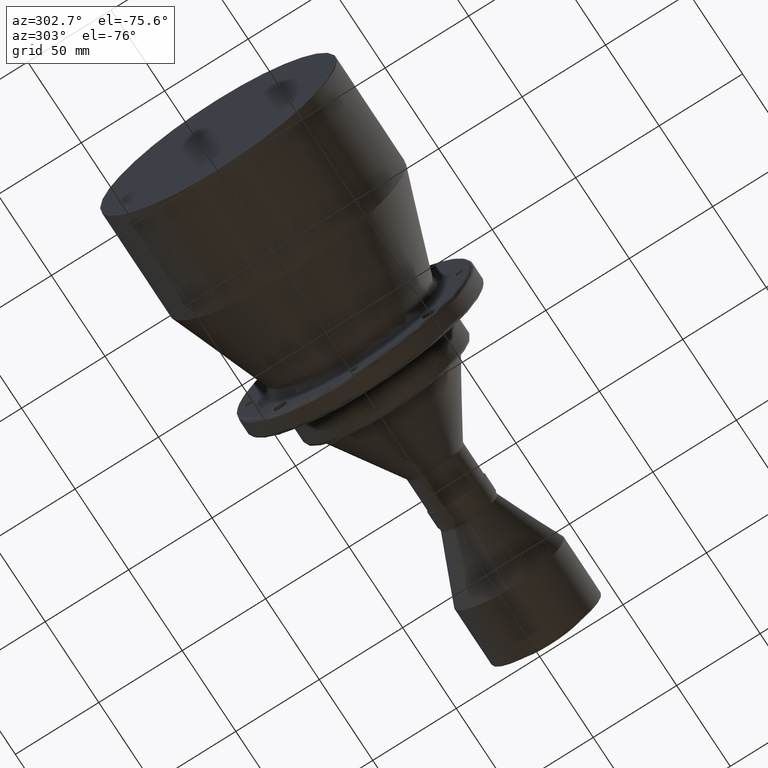
[diagram: clean part render]
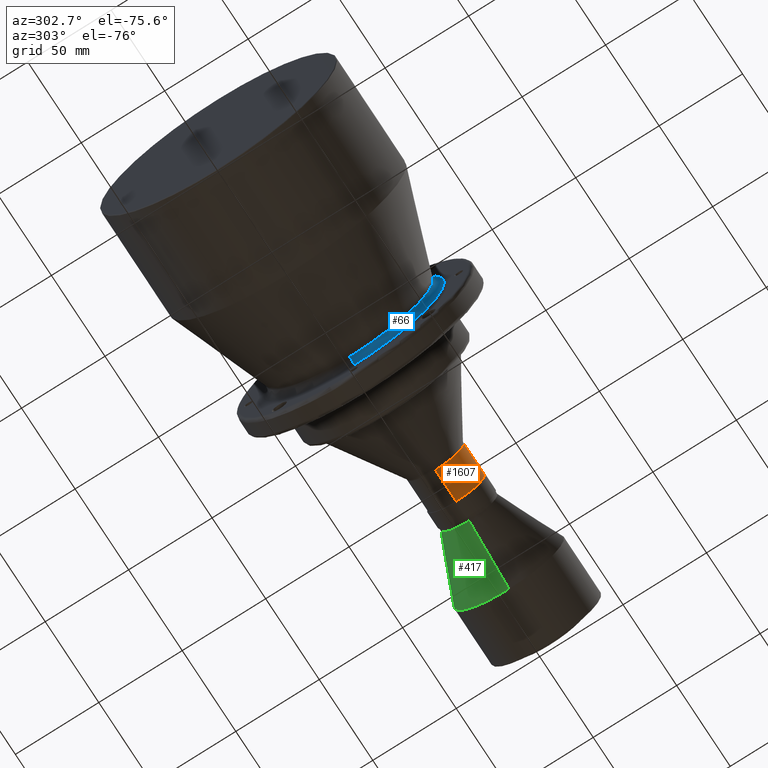
[diagram: same view with three faces highlighted in distinct colors, each labeled with its STEP entity id]
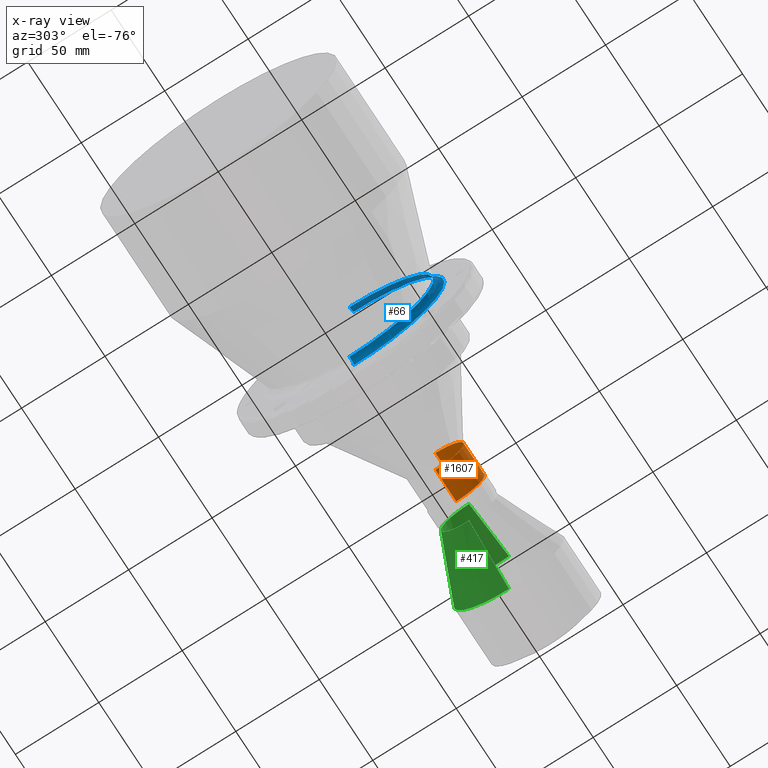
[diagram: x-ray of the same camera — body ghosted, the three highlighted faces saturated]
A machine part, auxiliary view with three faces highlighted in distinct colors.
The next image is the same camera in x-ray (body ghosted, the three faces saturated) — at least one of them is partly hidden behind the body in this view.
Their STEP definitions:

[orange] entity #1607 — the highlighted cylindrical surface (edge-blend (fillet) strip) has radius 17 mm, axis along (-1, -0, -0).
#24 = DIRECTION ( 'NONE',  ( 0.0000000000000000000, 0.0000000000000000000, 1.000000000000000000 ) ) ;
#38 = VERTEX_POINT ( 'NONE', #1800 ) ;
#47 = AXIS2_PLACEMENT_3D ( 'NONE', #785, #367, #1791 ) ;
#53 = CARTESIAN_POINT ( 'NONE',  ( 222.0999999999999900, 2.081899558550500300E-015, -17.00000000000000000 ) ) ;
#62 = DIRECTION ( 'NONE',  ( 0.0000000000000000000, 0.0000000000000000000, 1.000000000000000000 ) ) ;
#115 = FACE_OUTER_BOUND ( 'NONE', #1278, .T. ) ;
#160 = ORIENTED_EDGE ( 'NONE', *, *, #1414, .F. ) ;
#163 = EDGE_CURVE ( 'NONE', #203, #636, #381, .T. ) ;
#203 = VERTEX_POINT ( 'NONE', #1405 ) ;
#227 = CARTESIAN_POINT ( 'NONE',  ( 202.6691211577453100, 0.0000000000000000000, 17.00000000000000000 ) ) ;
#274 = CIRCLE ( 'NONE', #47, 17.00000000000000000 ) ;
#343 = CYLINDRICAL_SURFACE ( 'NONE', #1502, 17.00000000000000000 ) ;
#367 = DIRECTION ( 'NONE',  ( -1.000000000000000000, -0.0000000000000000000, -0.0000000000000000000 ) ) ;
#381 = LINE ( 'NONE', #1132, #1847 ) ;
#427 = CIRCLE ( 'NONE', #760, 17.00000000000000000 ) ;
#562 = VERTEX_POINT ( 'NONE', #53 ) ;
#636 = VERTEX_POINT ( 'NONE', #227 ) ;
#760 = AXIS2_PLACEMENT_3D ( 'NONE', #870, #1857, #24 ) ;
#785 = CARTESIAN_POINT ( 'NONE',  ( 222.0999999999999900, 0.0000000000000000000, 0.0000000000000000000 ) ) ;
#813 = LINE ( 'NONE', #944, #1016 ) ;
#814 = DIRECTION ( 'NONE',  ( -1.000000000000000000, -0.0000000000000000000, -0.0000000000000000000 ) ) ;
#870 = CARTESIAN_POINT ( 'NONE',  ( 202.6691211577453100, 0.0000000000000000000, 0.0000000000000000000 ) ) ;
#944 = CARTESIAN_POINT ( 'NONE',  ( -15.38440440350833200, 2.081899558550500300E-015, -17.00000000000000000 ) ) ;
#1005 = ORIENTED_EDGE ( 'NONE', *, *, #1770, .F. ) ;
#1016 = VECTOR ( 'NONE', #814, 1000.000000000000000 ) ;
#1076 = CARTESIAN_POINT ( 'NONE',  ( -15.38440440350833200, 0.0000000000000000000, 0.0000000000000000000 ) ) ;
#1120 = DIRECTION ( 'NONE',  ( -1.000000000000000000, -0.0000000000000000000, -0.0000000000000000000 ) ) ;
#1132 = CARTESIAN_POINT ( 'NONE',  ( -15.38440440350833200, 0.0000000000000000000, 17.00000000000000000 ) ) ;
#1232 = ORIENTED_EDGE ( 'NONE', *, *, #163, .T. ) ;
#1233 = DIRECTION ( 'NONE',  ( -1.000000000000000000, -0.0000000000000000000, -0.0000000000000000000 ) ) ;
#1240 = ORIENTED_EDGE ( 'NONE', *, *, #1629, .T. ) ;
#1278 = EDGE_LOOP ( 'NONE', ( #160, #1240, #1232, #1005 ) ) ;
#1405 = CARTESIAN_POINT ( 'NONE',  ( 222.0999999999999900, 0.0000000000000000000, 17.00000000000000000 ) ) ;
#1414 = EDGE_CURVE ( 'NONE', #562, #38, #813, .T. ) ;
#1502 = AXIS2_PLACEMENT_3D ( 'NONE', #1076, #1233, #62 ) ;
#1607 = ADVANCED_FACE ( 'NONE', ( #115 ), #343, .T. ) ;
#1629 = EDGE_CURVE ( 'NONE', #562, #203, #274, .T. ) ;
#1770 = EDGE_CURVE ( 'NONE', #38, #636, #427, .T. ) ;
#1791 = DIRECTION ( 'NONE',  ( 0.0000000000000000000, 0.0000000000000000000, 1.000000000000000000 ) ) ;
#1800 = CARTESIAN_POINT ( 'NONE',  ( 202.6691211577453100, 2.081899558550500300E-015, -17.00000000000000000 ) ) ;
#1847 = VECTOR ( 'NONE', #1120, 1000.000000000000000 ) ;
#1857 = DIRECTION ( 'NONE',  ( -1.000000000000000000, -0.0000000000000000000, -0.0000000000000000000 ) ) ;

[blue] entity #66 — the highlighted toroidal blend (fillet) surface has major radius 54.3284 mm and minor (blend) radius 4 mm.
#66 = ADVANCED_FACE ( 'NONE', ( #1253 ), #1272, .F. ) ;
#68 = EDGE_CURVE ( 'NONE', #1127, #1744, #170, .T. ) ;
#154 = AXIS2_PLACEMENT_3D ( 'NONE', #395, #965, #531 ) ;
#170 = CIRCLE ( 'NONE', #568, 4.000000000000003600 ) ;
#287 = ORIENTED_EDGE ( 'NONE', *, *, #1406, .T. ) ;
#312 = EDGE_LOOP ( 'NONE', ( #977, #1257, #287, #1328 ) ) ;
#382 = CARTESIAN_POINT ( 'NONE',  ( 122.5000000000000000, 0.0000000000000000000, 0.0000000000000000000 ) ) ;
#384 = VERTEX_POINT ( 'NONE', #1589 ) ;
#395 = CARTESIAN_POINT ( 'NONE',  ( 126.5000000000000000, 0.0000000000000000000, 0.0000000000000000000 ) ) ;
#414 = CIRCLE ( 'NONE', #1545, 50.32842261959696400 ) ;
#431 = CARTESIAN_POINT ( 'NONE',  ( 126.5000000000000000, 6.653312886381410900E-015, -54.32842261959698500 ) ) ;
#480 = CIRCLE ( 'NONE', #154, 54.32842261959700600 ) ;
#527 = VERTEX_POINT ( 'NONE', #1205 ) ;
#531 = DIRECTION ( 'NONE',  ( 0.0000000000000000000, 0.0000000000000000000, 1.000000000000000000 ) ) ;
#540 = AXIS2_PLACEMENT_3D ( 'NONE', #1790, #1268, #832 ) ;
#565 = DIRECTION ( 'NONE',  ( -1.000000000000000000, -0.0000000000000000000, -0.0000000000000000000 ) ) ;
#568 = AXIS2_PLACEMENT_3D ( 'NONE', #1080, #1517, #926 ) ;
#577 = CARTESIAN_POINT ( 'NONE',  ( 122.5000000000000000, 6.163454166722467200E-015, -50.32842261959696400 ) ) ;
#649 = AXIS2_PLACEMENT_3D ( 'NONE', #382, #1806, #668 ) ;
#668 = DIRECTION ( 'NONE',  ( 0.0000000000000000000, 0.0000000000000000000, 1.000000000000000000 ) ) ;
#701 = EDGE_CURVE ( 'NONE', #527, #384, #1206, .T. ) ;
#832 = DIRECTION ( 'NONE',  ( 0.0000000000000000000, 0.0000000000000000000, -1.000000000000000000 ) ) ;
#851 = EDGE_CURVE ( 'NONE', #1127, #527, #414, .T. ) ;
#926 = DIRECTION ( 'NONE',  ( 0.0000000000000000000, -1.224646799147353500E-016, 1.000000000000000000 ) ) ;
#965 = DIRECTION ( 'NONE',  ( -1.000000000000000000, -0.0000000000000000000, -0.0000000000000000000 ) ) ;
#977 = ORIENTED_EDGE ( 'NONE', *, *, #851, .F. ) ;
#1003 = CARTESIAN_POINT ( 'NONE',  ( 122.5000000000000000, 0.0000000000000000000, 0.0000000000000000000 ) ) ;
#1080 = CARTESIAN_POINT ( 'NONE',  ( 122.5000000000000000, 6.653312886381408600E-015, -54.32842261959696400 ) ) ;
#1127 = VERTEX_POINT ( 'NONE', #577 ) ;
#1205 = CARTESIAN_POINT ( 'NONE',  ( 122.5000000000000000, 0.0000000000000000000, 50.32842261959696400 ) ) ;
#1206 = CIRCLE ( 'NONE', #540, 4.000000000000003600 ) ;
#1253 = FACE_OUTER_BOUND ( 'NONE', #312, .T. ) ;
#1257 = ORIENTED_EDGE ( 'NONE', *, *, #68, .T. ) ;
#1268 = DIRECTION ( 'NONE',  ( 0.0000000000000000000, -1.000000000000000000, 0.0000000000000000000 ) ) ;
#1272 = TOROIDAL_SURFACE ( 'NONE', #649, 54.32842261959696400, 4.000000000000001800 ) ;
#1328 = ORIENTED_EDGE ( 'NONE', *, *, #701, .F. ) ;
#1406 = EDGE_CURVE ( 'NONE', #1744, #384, #480, .T. ) ;
#1434 = DIRECTION ( 'NONE',  ( 0.0000000000000000000, 0.0000000000000000000, 1.000000000000000000 ) ) ;
#1517 = DIRECTION ( 'NONE',  ( -0.0000000000000000000, 1.000000000000000000, 1.224646799147353200E-016 ) ) ;
#1545 = AXIS2_PLACEMENT_3D ( 'NONE', #1003, #565, #1434 ) ;
#1589 = CARTESIAN_POINT ( 'NONE',  ( 126.5000000000000000, 0.0000000000000000000, 54.32842261959698500 ) ) ;
#1744 = VERTEX_POINT ( 'NONE', #431 ) ;
#1790 = CARTESIAN_POINT ( 'NONE',  ( 122.5000000000000000, 0.0000000000000000000, 54.32842261959696400 ) ) ;
#1806 = DIRECTION ( 'NONE',  ( -1.000000000000000000, -0.0000000000000000000, -0.0000000000000000000 ) ) ;

[green] entity #417 — the highlighted conical surface has half-angle 23.217 deg.
#63 = EDGE_CURVE ( 'NONE', #1477, #1324, #1209, .T. ) ;
#79 = VECTOR ( 'NONE', #1572, 1000.000000000000100 ) ;
#147 = CARTESIAN_POINT ( 'NONE',  ( 271.3999999999999800, 4.041334437186266200E-015, 33.00000000000000000 ) ) ;
#171 = CARTESIAN_POINT ( 'NONE',  ( 271.3999999999999800, 0.0000000000000000000, 0.0000000000000000000 ) ) ;
#266 = ORIENTED_EDGE ( 'NONE', *, *, #1009, .F. ) ;
#296 = EDGE_CURVE ( 'NONE', #1794, #1477, #1269, .T. ) ;
#298 = DIRECTION ( 'NONE',  ( 1.000000000000000000, 0.0000000000000000000, 0.0000000000000000000 ) ) ;
#331 = CARTESIAN_POINT ( 'NONE',  ( 234.0999999999999400, 0.0000000000000000000, 0.0000000000000000000 ) ) ;
#387 = CARTESIAN_POINT ( 'NONE',  ( 271.3999999999999800, 0.0000000000000000000, 0.0000000000000000000 ) ) ;
#417 = ADVANCED_FACE ( 'NONE', ( #830 ), #925, .T. ) ;
#462 = ORIENTED_EDGE ( 'NONE', *, *, #63, .T. ) ;
#647 = DIRECTION ( 'NONE',  ( 0.0000000000000000000, 0.0000000000000000000, 1.000000000000000000 ) ) ;
#680 = CARTESIAN_POINT ( 'NONE',  ( 271.3999999999999800, 0.0000000000000000000, 33.00000000000000000 ) ) ;
#711 = DIRECTION ( 'NONE',  ( 0.0000000000000000000, 0.0000000000000000000, 1.000000000000000000 ) ) ;
#830 = FACE_OUTER_BOUND ( 'NONE', #1456, .T. ) ;
#876 = CARTESIAN_POINT ( 'NONE',  ( 271.3999999999999800, 0.0000000000000000000, -33.00000000000000000 ) ) ;
#925 = CONICAL_SURFACE ( 'NONE', #932, 33.00000000000000000, 0.4052153061702697400 ) ;
#932 = AXIS2_PLACEMENT_3D ( 'NONE', #171, #298, #1594 ) ;
#968 = AXIS2_PLACEMENT_3D ( 'NONE', #387, #1241, #647 ) ;
#984 = CARTESIAN_POINT ( 'NONE',  ( 234.0999999999999400, 0.0000000000000000000, -17.00000000000000000 ) ) ;
#1009 = EDGE_CURVE ( 'NONE', #1794, #1511, #1712, .T. ) ;
#1039 = DIRECTION ( 'NONE',  ( -1.000000000000000000, -0.0000000000000000000, -0.0000000000000000000 ) ) ;
#1209 = CIRCLE ( 'NONE', #968, 33.00000000000000000 ) ;
#1215 = ORIENTED_EDGE ( 'NONE', *, *, #296, .T. ) ;
#1227 = CARTESIAN_POINT ( 'NONE',  ( 271.3999999999999800, 4.041334437186266200E-015, -33.00000000000000000 ) ) ;
#1241 = DIRECTION ( 'NONE',  ( -1.000000000000000000, -0.0000000000000000000, -0.0000000000000000000 ) ) ;
#1269 = LINE ( 'NONE', #147, #79 ) ;
#1324 = VERTEX_POINT ( 'NONE', #1227 ) ;
#1341 = CARTESIAN_POINT ( 'NONE',  ( 234.0999999999999400, 3.061616997868383000E-015, 17.00000000000000000 ) ) ;
#1456 = EDGE_LOOP ( 'NONE', ( #266, #1215, #462, #1618 ) ) ;
#1477 = VERTEX_POINT ( 'NONE', #680 ) ;
#1511 = VERTEX_POINT ( 'NONE', #984 ) ;
#1572 = DIRECTION ( 'NONE',  ( 0.9190175411928216400, 4.827761459225990800E-017, 0.3942166396537570300 ) ) ;
#1594 = DIRECTION ( 'NONE',  ( 0.0000000000000000000, 0.0000000000000000000, -1.000000000000000000 ) ) ;
#1618 = ORIENTED_EDGE ( 'NONE', *, *, #1808, .F. ) ;
#1632 = DIRECTION ( 'NONE',  ( 0.9190175411928216400, 0.0000000000000000000, -0.3942166396537570300 ) ) ;
#1665 = LINE ( 'NONE', #876, #1837 ) ;
#1712 = CIRCLE ( 'NONE', #1777, 17.00000000000000000 ) ;
#1777 = AXIS2_PLACEMENT_3D ( 'NONE', #331, #1039, #711 ) ;
#1794 = VERTEX_POINT ( 'NONE', #1341 ) ;
#1808 = EDGE_CURVE ( 'NONE', #1511, #1324, #1665, .T. ) ;
#1837 = VECTOR ( 'NONE', #1632, 1000.000000000000100 ) ;